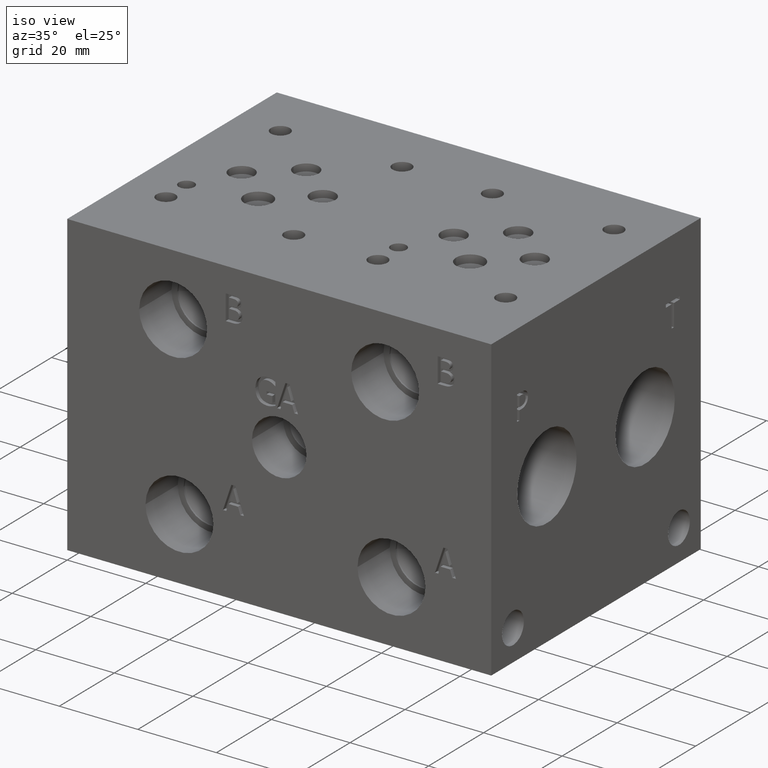
[diagram: clean part render]
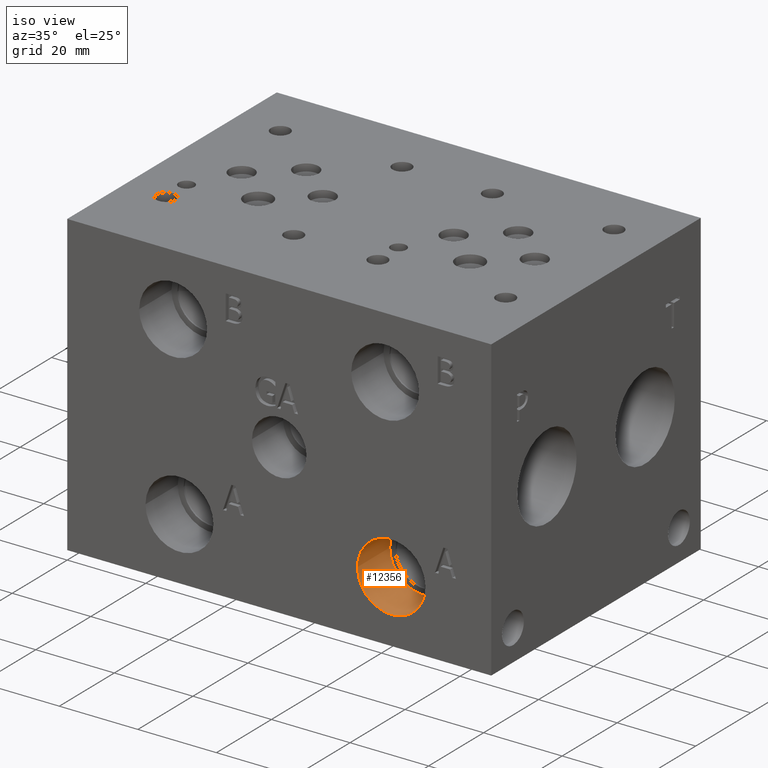
[diagram: same view with one face highlighted and labeled with its STEP entity id]
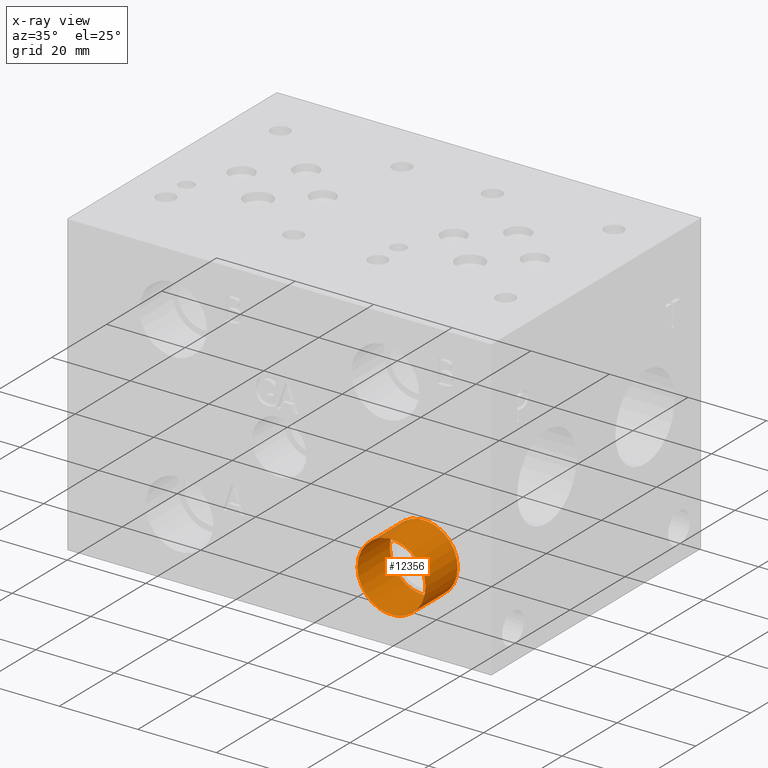
[diagram: x-ray of the same camera — body ghosted, the highlighted face saturated]
A machine part, iso view. The second image highlights one B-rep face of the part: STEP entity #12356.
The next image is the same camera in x-ray: the body ghosted, the highlighted face saturated — about 0% of this face is hidden behind the body in this view.
In plain terms, the highlighted cylindrical surface (bore or boss wall) has radius 8.6487 mm, axis along (0, -1, 0).
Its self-contained STEP definition (entity closure, byte-faithful):
#101=CYLINDRICAL_SURFACE('',#13020,8.6487);
#132=CIRCLE('',#12682,8.6487);
#133=CIRCLE('',#12683,8.6487);
#306=CIRCLE('',#13017,8.6487);
#307=CIRCLE('',#13018,8.6487);
#1398=FACE_OUTER_BOUND('',#2111,.T.);
#2111=EDGE_LOOP('',(#10905,#10906,#10907,#10908,#10909,#10910));
#3273=LINE('',#21305,#4401);
#4401=VECTOR('',#15431,8.6487);
#5580=VERTEX_POINT('',#19931);
#5581=VERTEX_POINT('',#19932);
#5921=VERTEX_POINT('',#21298);
#5922=VERTEX_POINT('',#21299);
#7143=EDGE_CURVE('',#5580,#5581,#132,.T.);
#7144=EDGE_CURVE('',#5581,#5580,#133,.T.);
#7616=EDGE_CURVE('',#5921,#5922,#306,.T.);
#7617=EDGE_CURVE('',#5922,#5921,#307,.T.);
#7619=EDGE_CURVE('',#5581,#5922,#3273,.T.);
#10905=ORIENTED_EDGE('',*,*,#7143,.F.);
#10906=ORIENTED_EDGE('',*,*,#7144,.F.);
#10907=ORIENTED_EDGE('',*,*,#7619,.T.);
#10908=ORIENTED_EDGE('',*,*,#7616,.F.);
#10909=ORIENTED_EDGE('',*,*,#7617,.F.);
#10910=ORIENTED_EDGE('',*,*,#7619,.F.);
#12356=ADVANCED_FACE('',(#1398),#101,.F.);
#12682=AXIS2_PLACEMENT_3D('',#19933,#14510,#14511);
#12683=AXIS2_PLACEMENT_3D('',#19934,#14512,#14513);
#13017=AXIS2_PLACEMENT_3D('',#21300,#15423,#15424);
#13018=AXIS2_PLACEMENT_3D('',#21301,#15425,#15426);
#13020=AXIS2_PLACEMENT_3D('',#21304,#15429,#15430);
#14510=DIRECTION('center_axis',(0.,1.,0.));
#14511=DIRECTION('ref_axis',(1.,0.,0.));
#14512=DIRECTION('center_axis',(0.,1.,0.));
#14513=DIRECTION('ref_axis',(1.,0.,0.));
#15423=DIRECTION('center_axis',(0.,-1.,0.));
#15424=DIRECTION('ref_axis',(1.,0.,0.));
#15425=DIRECTION('center_axis',(0.,-1.,0.));
#15426=DIRECTION('ref_axis',(1.,0.,0.));
#15429=DIRECTION('center_axis',(0.,-1.,0.));
#15430=DIRECTION('ref_axis',(1.,0.,0.));
#15431=DIRECTION('',(0.,1.,0.));
#19931=CARTESIAN_POINT('',(91.1987,0.,15.875));
#19932=CARTESIAN_POINT('',(73.9013,0.,15.875));
#19933=CARTESIAN_POINT('Origin',(82.55,0.,15.875));
#19934=CARTESIAN_POINT('Origin',(82.55,0.,15.875));
#21298=CARTESIAN_POINT('',(91.1987,11.7348,15.875));
#21299=CARTESIAN_POINT('',(73.9013,11.7348,15.875));
#21300=CARTESIAN_POINT('Origin',(82.55,11.7348,15.875));
#21301=CARTESIAN_POINT('Origin',(82.55,11.7348,15.875));
#21304=CARTESIAN_POINT('Origin',(82.55,5.8674,15.875));
#21305=CARTESIAN_POINT('',(73.9013,5.8674,15.875));